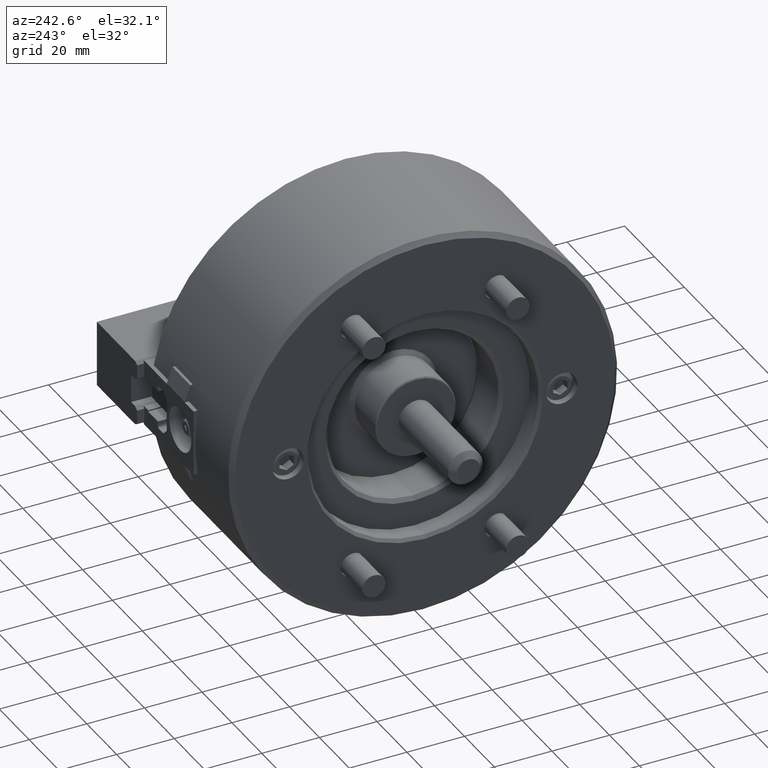
[diagram: clean part render]
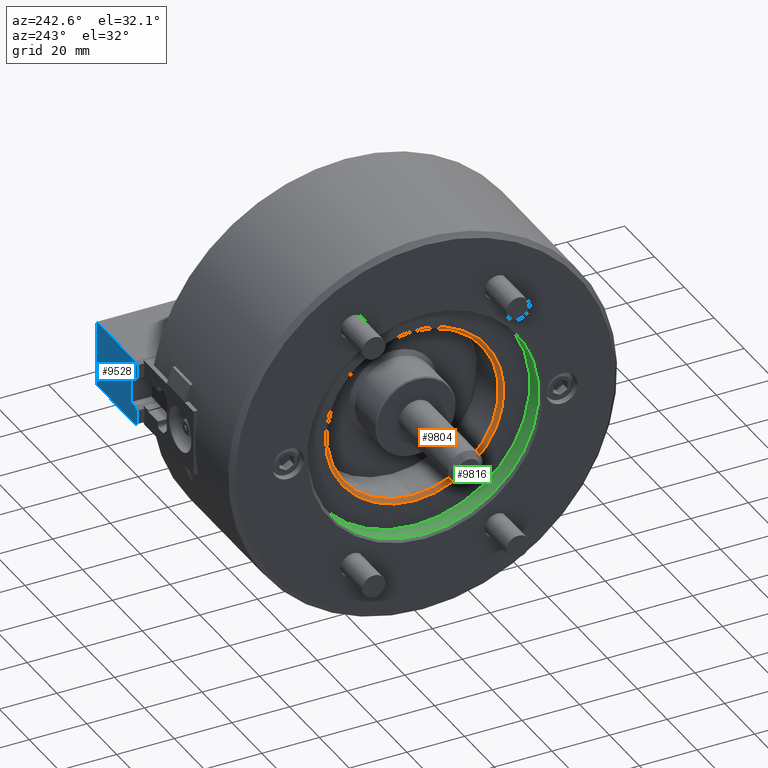
[diagram: same view with three faces highlighted in distinct colors, each labeled with its STEP entity id]
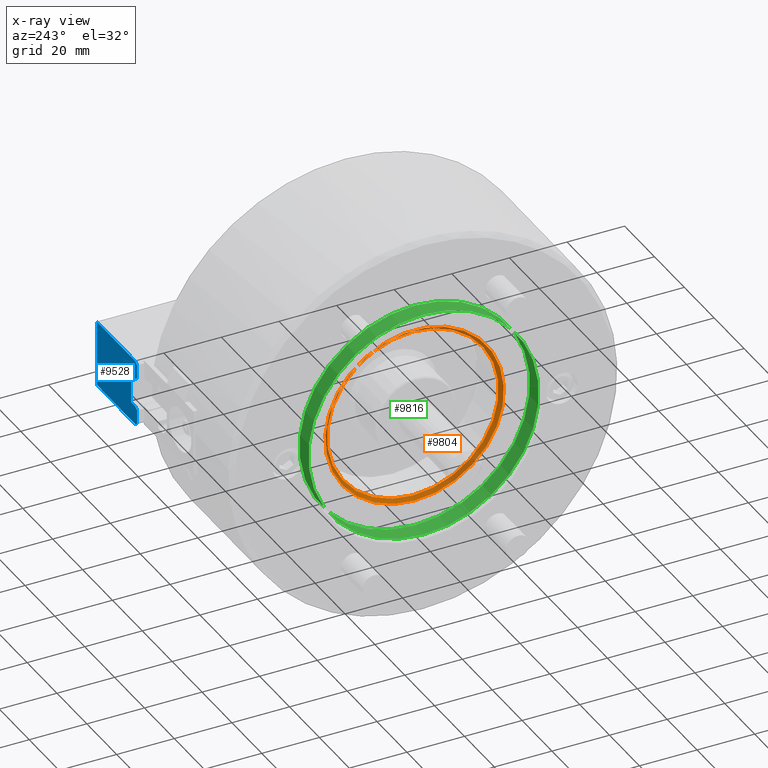
[diagram: x-ray of the same camera — body ghosted, the three highlighted faces saturated]
A machine part, auxiliary view with three faces highlighted in distinct colors.
The next image is the same camera in x-ray (body ghosted, the three faces saturated) — at least one of them is partly hidden behind the body in this view.
Their STEP definitions:

[orange] entity #9804 — the highlighted conical surface has half-angle 45 deg.
#191=CONICAL_SURFACE('',#10714,31.,0.785398163397448);
#539=CIRCLE('',#10591,31.);
#560=CIRCLE('',#10705,29.8);
#2958=ORIENTED_EDGE('',*,*,#4386,.F.);
#2959=ORIENTED_EDGE('',*,*,#4543,.T.);
#4386=EDGE_CURVE('',#5361,#5361,#539,.T.);
#4543=EDGE_CURVE('',#5458,#5458,#560,.T.);
#5361=VERTEX_POINT('',#16006);
#5458=VERTEX_POINT('',#16401);
#7985=EDGE_LOOP('',(#2958));
#7986=EDGE_LOOP('',(#2959));
#8733=FACE_BOUND('',#7985,.T.);
#8734=FACE_BOUND('',#7986,.T.);
#9804=ADVANCED_FACE('',(#8733,#8734),#191,.F.);
#10591=AXIS2_PLACEMENT_3D('',#16005,#12960,#12961);
#10705=AXIS2_PLACEMENT_3D('',#16400,#13308,#13309);
#10714=AXIS2_PLACEMENT_3D('',#16414,#13326,#13327);
#12960=DIRECTION('',(1.,0.,0.));
#12961=DIRECTION('',(0.,0.,-1.));
#13308=DIRECTION('',(1.,0.,0.));
#13309=DIRECTION('',(0.,0.,1.));
#13326=DIRECTION('',(-1.,0.,0.));
#13327=DIRECTION('',(0.,0.,1.));
#16005=CARTESIAN_POINT('',(-48.,0.,0.));
#16006=CARTESIAN_POINT('',(-48.,0.,-31.));
#16400=CARTESIAN_POINT('',(-46.8,0.,0.));
#16401=CARTESIAN_POINT('',(-46.8,0.,29.8));
#16414=CARTESIAN_POINT('',(-48.,0.,0.));

[blue] entity #9528 — the highlighted planar face has unit normal (0, 1, 0).
#1829=ORIENTED_EDGE('',*,*,#4022,.T.);
#1830=ORIENTED_EDGE('',*,*,#4023,.F.);
#1831=ORIENTED_EDGE('',*,*,#3818,.F.);
#1832=ORIENTED_EDGE('',*,*,#3976,.F.);
#1833=ORIENTED_EDGE('',*,*,#3824,.F.);
#1834=ORIENTED_EDGE('',*,*,#4024,.F.);
#1835=ORIENTED_EDGE('',*,*,#4025,.T.);
#1836=ORIENTED_EDGE('',*,*,#4026,.T.);
#1837=ORIENTED_EDGE('',*,*,#3757,.T.);
#1838=ORIENTED_EDGE('',*,*,#4021,.T.);
#1839=ORIENTED_EDGE('',*,*,#3765,.T.);
#1840=ORIENTED_EDGE('',*,*,#4027,.T.);
#3757=EDGE_CURVE('',#4968,#4967,#5886,.T.);
#3765=EDGE_CURVE('',#4975,#4974,#5894,.T.);
#3818=EDGE_CURVE('',#5015,#5016,#5929,.T.);
#3824=EDGE_CURVE('',#5019,#5020,#5935,.T.);
#3976=EDGE_CURVE('',#5020,#5015,#6047,.T.);
#4021=EDGE_CURVE('',#4967,#4975,#6084,.T.);
#4022=EDGE_CURVE('',#5158,#5159,#6085,.T.);
#4023=EDGE_CURVE('',#5016,#5159,#6086,.T.);
#4024=EDGE_CURVE('',#5160,#5019,#6087,.T.);
#4025=EDGE_CURVE('',#5160,#5161,#6088,.T.);
#4026=EDGE_CURVE('',#5161,#4968,#6089,.T.);
#4027=EDGE_CURVE('',#4974,#5158,#6090,.T.);
#4967=VERTEX_POINT('',#14636);
#4968=VERTEX_POINT('',#14638);
#4974=VERTEX_POINT('',#14653);
#4975=VERTEX_POINT('',#14655);
#5015=VERTEX_POINT('',#14776);
#5016=VERTEX_POINT('',#14778);
#5019=VERTEX_POINT('',#14788);
#5020=VERTEX_POINT('',#14790);
#5158=VERTEX_POINT('',#15205);
#5159=VERTEX_POINT('',#15206);
#5160=VERTEX_POINT('',#15209);
#5161=VERTEX_POINT('',#15211);
#5886=LINE('',#14637,#6832);
#5894=LINE('',#14654,#6840);
#5929=LINE('',#14777,#6875);
#5935=LINE('',#14789,#6881);
#6047=LINE('',#15114,#6993);
#6084=LINE('',#15202,#7030);
#6085=LINE('',#15204,#7031);
#6086=LINE('',#15207,#7032);
#6087=LINE('',#15208,#7033);
#6088=LINE('',#15210,#7034);
#6089=LINE('',#15212,#7035);
#6090=LINE('',#15213,#7036);
#6832=VECTOR('',#11667,1000.);
#6840=VECTOR('',#11679,1000.);
#6875=VECTOR('',#11760,1000.);
#6881=VECTOR('',#11770,1000.);
#6993=VECTOR('',#12032,1000.);
#7030=VECTOR('',#12123,1000.);
#7031=VECTOR('',#12126,1000.);
#7032=VECTOR('',#12127,1000.);
#7033=VECTOR('',#12128,1000.);
#7034=VECTOR('',#12129,1000.);
#7035=VECTOR('',#12130,1000.);
#7036=VECTOR('',#12131,1000.);
#7654=EDGE_LOOP('',(#1829,#1830,#1831,#1832,#1833,#1834,#1835,#1836,#1837,
#1838,#1839,#1840));
#8402=FACE_BOUND('',#7654,.T.);
#9087=PLANE('',#10283);
#9528=ADVANCED_FACE('',(#8402),#9087,.T.);
#10283=AXIS2_PLACEMENT_3D('',#15203,#12124,#12125);
#11667=DIRECTION('',(-0.866025403784438,0.,0.500000000000001));
#11679=DIRECTION('',(0.866025403784439,0.,0.5));
#11760=DIRECTION('',(0.866025403784439,0.,-0.5));
#11770=DIRECTION('',(-0.866025403784438,0.,-0.500000000000001));
#12032=DIRECTION('',(0.,0.,-1.));
#12123=DIRECTION('',(0.,0.,1.));
#12124=DIRECTION('',(0.,1.,0.));
#12125=DIRECTION('',(0.,0.,1.));
#12126=DIRECTION('',(0.,0.,1.));
#12127=DIRECTION('',(1.,0.,0.));
#12128=DIRECTION('',(-1.,0.,-1.35525271560688E-16));
#12129=DIRECTION('',(0.,0.,-1.));
#12130=DIRECTION('',(-1.,0.,1.35525271560688E-16));
#12131=DIRECTION('',(1.,0.,0.));
#14636=CARTESIAN_POINT('',(2.,70.4,-10.6917096231345));
#14637=CARTESIAN_POINT('',(3.4,70.4,-11.5));
#14638=CARTESIAN_POINT('',(3.4,70.4,-11.5));
#14653=CARTESIAN_POINT('',(3.57320508075689,70.4,-4.9));
#14654=CARTESIAN_POINT('',(2.,70.4,-5.80829037686548));
#14655=CARTESIAN_POINT('',(2.,70.4,-5.80829037686548));
#14776=CARTESIAN_POINT('',(2.,70.4,5.80829037686548));
#14777=CARTESIAN_POINT('',(2.,70.4,5.80829037686548));
#14778=CARTESIAN_POINT('',(3.57320508075689,70.4,4.9));
#14788=CARTESIAN_POINT('',(3.4,70.4,11.5));
#14789=CARTESIAN_POINT('',(3.4,70.4,11.5));
#14790=CARTESIAN_POINT('',(2.,70.4,10.6917096231345));
#15114=CARTESIAN_POINT('',(2.,70.4,10.6917096231345));
#15202=CARTESIAN_POINT('',(2.,70.4,-10.6917096231345));
#15203=CARTESIAN_POINT('',(29.,70.4,0.));
#15204=CARTESIAN_POINT('',(6.,70.4,-5.));
#15205=CARTESIAN_POINT('',(6.,70.4,-4.9));
#15206=CARTESIAN_POINT('',(6.,70.4,4.9));
#15207=CARTESIAN_POINT('',(29.,70.4,4.9));
#15208=CARTESIAN_POINT('',(29.,70.4,11.5));
#15209=CARTESIAN_POINT('',(29.,70.4,11.5));
#15210=CARTESIAN_POINT('',(29.,70.4,0.));
#15211=CARTESIAN_POINT('',(29.,70.4,-11.5));
#15212=CARTESIAN_POINT('',(29.,70.4,-11.5));
#15213=CARTESIAN_POINT('',(3.4,70.4,-4.9));

[green] entity #9816 — the highlighted cylindrical surface (bore or boss wall) has radius 40 mm, axis along (1, 0, 0).
#120=CYLINDRICAL_SURFACE('',#10728,40.);
#538=CIRCLE('',#10590,40.);
#567=CIRCLE('',#10729,40.);
#2982=ORIENTED_EDGE('',*,*,#4385,.T.);
#2983=ORIENTED_EDGE('',*,*,#4550,.F.);
#4385=EDGE_CURVE('',#5360,#5360,#538,.T.);
#4550=EDGE_CURVE('',#5465,#5465,#567,.T.);
#5360=VERTEX_POINT('',#16004);
#5465=VERTEX_POINT('',#16432);
#8009=EDGE_LOOP('',(#2982));
#8010=EDGE_LOOP('',(#2983));
#8757=FACE_BOUND('',#8009,.T.);
#8758=FACE_BOUND('',#8010,.T.);
#9816=ADVANCED_FACE('',(#8757,#8758),#120,.F.);
#10590=AXIS2_PLACEMENT_3D('',#16003,#12958,#12959);
#10728=AXIS2_PLACEMENT_3D('',#16430,#13354,#13355);
#10729=AXIS2_PLACEMENT_3D('',#16431,#13356,#13357);
#12958=DIRECTION('',(1.,0.,0.));
#12959=DIRECTION('',(0.,0.,-1.));
#13354=DIRECTION('',(1.,0.,0.));
#13355=DIRECTION('',(0.,0.,-1.));
#13356=DIRECTION('',(1.,0.,0.));
#13357=DIRECTION('',(0.,0.,-1.));
#16003=CARTESIAN_POINT('',(-48.,0.,0.));
#16004=CARTESIAN_POINT('',(-48.,0.,-40.));
#16430=CARTESIAN_POINT('',(2.75,0.,0.));
#16431=CARTESIAN_POINT('',(-54.,0.,0.));
#16432=CARTESIAN_POINT('',(-54.,0.,-40.));